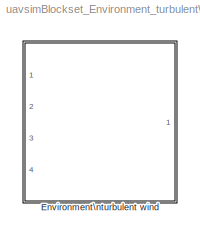
MODEL uavsimBlockset_Environment_turbulentWind
KIND library
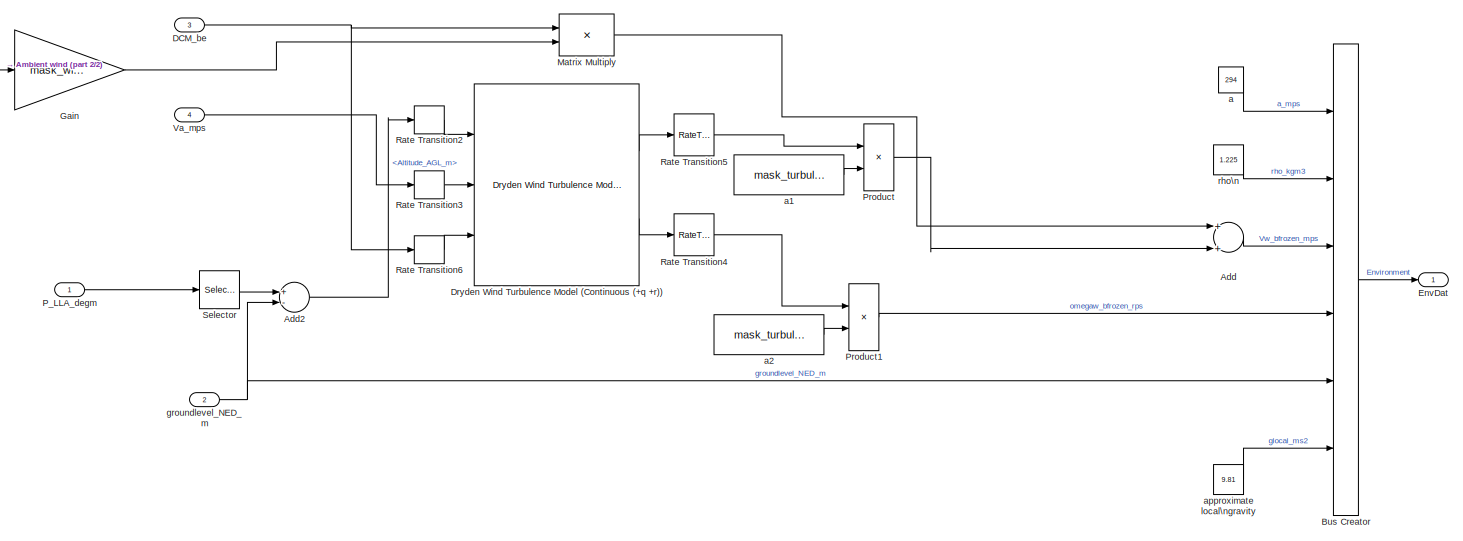
[diagram: Environment\nturbulent wind - part 1/2, most of the canvas]
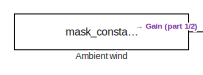
[diagram: Environment\nturbulent wind - part 2/2, top left region]
BLOCK [SubSystem] Environment\nturbulent wind
  Ports = [4, 1]
  RequestExecContextInheritance = off
  SID = 1695
  Variant = off
BLOCK [Sum] Environment\nturbulent wind/Add
  InputSameDT = off
  OutDataTypeStr = Inherit: Inherit via internal rule
  Ports = [2, 1]
  SID = 4432
  SaturateOnIntegerOverflow = off
BLOCK [Sum] Environment\nturbulent wind/Add2
  InputSameDT = off
  Inputs = +-
  OutDataTypeStr = Inherit: Inherit via internal rule
  Ports = [2, 1]
  SID = 4453
  SaturateOnIntegerOverflow = off
BLOCK [Constant] Environment\nturbulent wind/Ambient wind
  SID = 4431
  Value = mask_constantwind_NED_mps
BLOCK [BusCreator] Environment\nturbulent wind/Bus Creator
  DisplayOption = bar
  InheritFromInputs = on
  Inputs = 6
  NonVirtualBus = on
  OutDataTypeStr = Bus: Environment
  Ports = [6, 1]
  SID = 1771
BLOCK [Inport] Environment\nturbulent wind/DCM_be
  IconDisplay = Port number
  Port = 3
  SID = 4449
BLOCK [Reference] Environment\nturbulent wind/Dryden Wind Turbulence Model  (Continuous (+q +r))  REF=aerolibwind2/Dryden Wind Turbulence Model \n(Continuous (+q -r))
  L_high = 533.4
  Ports = [3, 2]
  SID = 4427
  Seed = randi(2^6, [1 4])
  SourceBlock = aerolibwind2/Dryden Wind Turbulence Model \n(Continuous (+q -r))
  SourceType = Wind Turbulence Model
  T_on = on
  TurbProb = 10^-2 - Light
  W20 = norm(mask_constantwind_NED_mps)
  Wdeg = rad2deg(fflib_cartesianToAngle(mask_constantwind_NED_mps(1), mask_constantwind_NED_mps(2)))
  Wingspan = mask_wingspan
  model = Discrete Dryden (+q -r)
  spec = MIL-F-8785C
  ts = 0.1
  units = Metric (MKS)
BLOCK [Outport] Environment\nturbulent wind/EnvDat
  IconDisplay = Port number
  OutDataTypeStr = Bus: Environment
  SID = 1793
BLOCK [Gain] Environment\nturbulent wind/Gain
  Gain = mask_windON
  OutDataTypeStr = Inherit: Inherit via internal rule
  ParamDataTypeStr = Inherit: Inherit via internal rule
  SID = 4490
  SaturateOnIntegerOverflow = off
BLOCK [Product] Environment\nturbulent wind/Matrix Multiply
  InputSameDT = off
  Multiplication = Matrix(*)
  OutDataTypeStr = Inherit: Inherit via internal rule
  Ports = [2, 1]
  RndMeth = Floor
  SID = 4438
  SaturateOnIntegerOverflow = off
BLOCK [Inport] Environment\nturbulent wind/P_LLA_degm
  IconDisplay = Port number
  SID = 1809
BLOCK [Product] Environment\nturbulent wind/Product
  InputSameDT = off
  OutDataTypeStr = Inherit: Inherit via internal rule
  Ports = [2, 1]
  SID = 4464
  SaturateOnIntegerOverflow = off
BLOCK [Product] Environment\nturbulent wind/Product1
  InputSameDT = off
  OutDataTypeStr = Inherit: Inherit via internal rule
  Ports = [2, 1]
  SID = 4467
  SaturateOnIntegerOverflow = off
BLOCK [RateTransition] Environment\nturbulent wind/Rate Transition2
  OutPortSampleTime = 0.1
  SID = 4455
BLOCK [RateTransition] Environment\nturbulent wind/Rate Transition3
  OutPortSampleTime = 0.1
  SID = 4456
BLOCK [RateTransition] Environment\nturbulent wind/Rate Transition4
  OutPortSampleTime = 0
  SID = 4447
BLOCK [RateTransition] Environment\nturbulent wind/Rate Transition5
  OutPortSampleTime = 0
  SID = 4448
BLOCK [RateTransition] Environment\nturbulent wind/Rate Transition6
  OutPortSampleTime = 0.1
  SID = 4457
BLOCK [Selector] Environment\nturbulent wind/Selector
  IndexOptions = Index vector (dialog)
  Indices = 3
  InputPortWidth = 3
  OutputSizes = 1
  Ports = [1, 1]
  SID = 4454
BLOCK [Inport] Environment\nturbulent wind/Va_mps
  IconDisplay = Port number
  Port = 4
  SID = 4451
BLOCK [Constant] Environment\nturbulent wind/a
  SID = 1785
  Value = 294
BLOCK [Constant] Environment\nturbulent wind/a1
  SID = 4465
  Value = mask_turbulenceON
BLOCK [Constant] Environment\nturbulent wind/a2
  SID = 4466
  Value = mask_turbulenceON
BLOCK [Constant] Environment\nturbulent wind/approximate local\ngravity
  SID = 4491
  Value = 9.81
BLOCK [Inport] Environment\nturbulent wind/groundlevel_NED_m
  IconDisplay = Port number
  Port = 2
  SID = 4018
BLOCK [Constant] Environment\nturbulent wind/rho\n
  SID = 1789
  Value = 1.225
LINE Environment\nturbulent wind/Add2:1 -> Environment\nturbulent wind/Rate Transition2:1
LINE Environment\nturbulent wind/Add:1 -> Environment\nturbulent wind/Bus Creator:3
LINE Environment\nturbulent wind/Ambient wind:1 -> Environment\nturbulent wind/Gain:1
LINE Environment\nturbulent wind/Bus Creator:1 -> Environment\nturbulent wind/EnvDat:1
NET Environment\nturbulent wind/DCM_be:1 -> Environment\nturbulent wind/Matrix Multiply:1, Environment\nturbulent wind/Rate Transition6:1
LINE Environment\nturbulent wind/Dryden Wind Turbulence Model  (Continuous (+q +r)):1 -> Environment\nturbulent wind/Rate Transition5:1
LINE Environment\nturbulent wind/Dryden Wind Turbulence Model  (Continuous (+q +r)):2 -> Environment\nturbulent wind/Rate Transition4:1
LINE Environment\nturbulent wind/Gain:1 -> Environment\nturbulent wind/Matrix Multiply:2
LINE Environment\nturbulent wind/Matrix Multiply:1 -> Environment\nturbulent wind/Add:1
LINE Environment\nturbulent wind/P_LLA_degm:1 -> Environment\nturbulent wind/Selector:1
LINE Environment\nturbulent wind/Product1:1 -> Environment\nturbulent wind/Bus Creator:4
LINE Environment\nturbulent wind/Product:1 -> Environment\nturbulent wind/Add:2
LINE Environment\nturbulent wind/Rate Transition2:1 -> Environment\nturbulent wind/Dryden Wind Turbulence Model  (Continuous (+q +r)):1
LINE Environment\nturbulent wind/Rate Transition3:1 -> Environment\nturbulent wind/Dryden Wind Turbulence Model  (Continuous (+q +r)):2
LINE Environment\nturbulent wind/Rate Transition4:1 -> Environment\nturbulent wind/Product1:1
LINE Environment\nturbulent wind/Rate Transition5:1 -> Environment\nturbulent wind/Product:1
LINE Environment\nturbulent wind/Rate Transition6:1 -> Environment\nturbulent wind/Dryden Wind Turbulence Model  (Continuous (+q +r)):3
LINE Environment\nturbulent wind/Selector:1 -> Environment\nturbulent wind/Add2:1
LINE Environment\nturbulent wind/Va_mps:1 -> Environment\nturbulent wind/Rate Transition3:1
LINE Environment\nturbulent wind/a1:1 -> Environment\nturbulent wind/Product:2
LINE Environment\nturbulent wind/a2:1 -> Environment\nturbulent wind/Product1:2
LINE Environment\nturbulent wind/a:1 -> Environment\nturbulent wind/Bus Creator:1
LINE Environment\nturbulent wind/approximate local\ngravity:1 -> Environment\nturbulent wind/Bus Creator:6
NET Environment\nturbulent wind/groundlevel_NED_m:1 -> Environment\nturbulent wind/Add2:2, Environment\nturbulent wind/Bus Creator:5
LINE Environment\nturbulent wind/rho\n:1 -> Environment\nturbulent wind/Bus Creator:2
note: NET lines group one-source signal fan-out (src -> all destinations, sorted); 1:1 wires keep LINE
